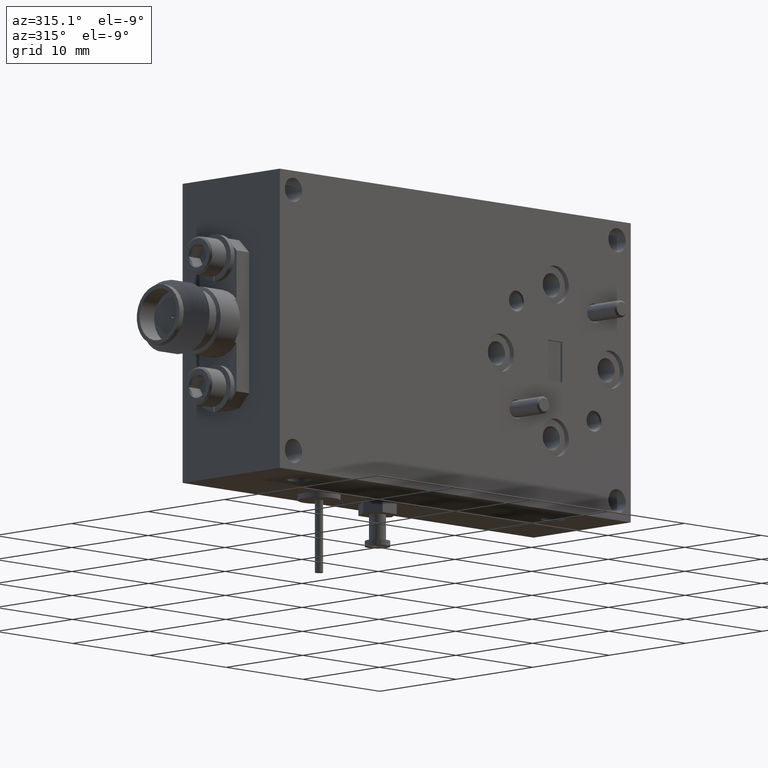
[diagram: clean part render]
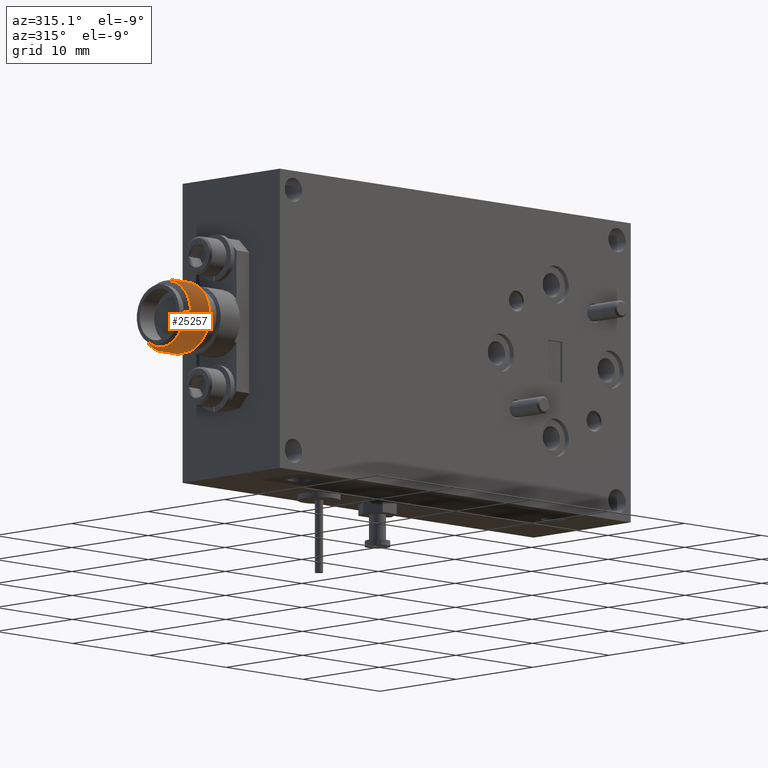
[diagram: same view with one face highlighted and labeled with its STEP entity id]
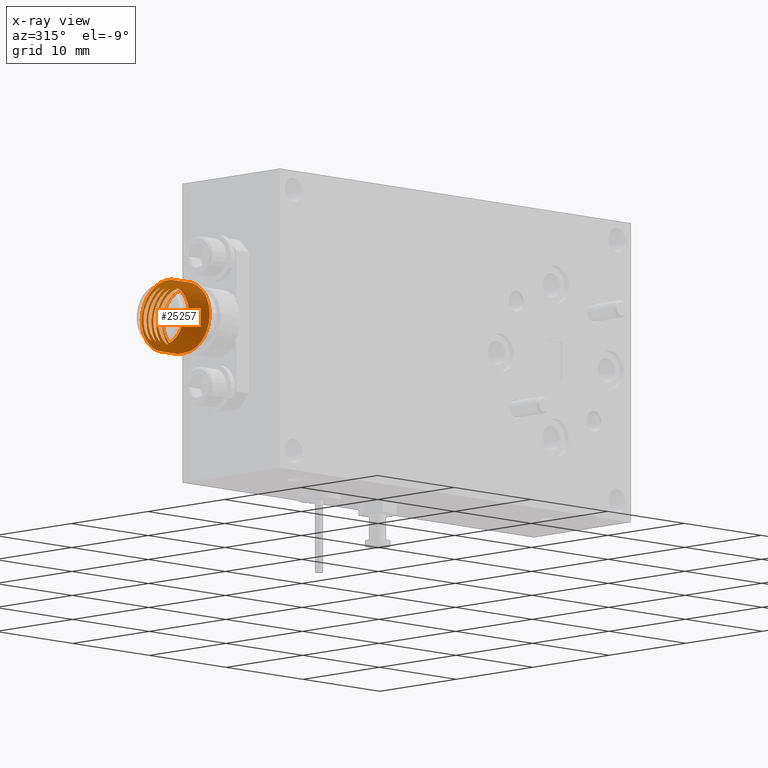
[diagram: x-ray of the same camera — body ghosted, the highlighted face saturated]
A machine part, auxiliary view. The second image highlights one B-rep face of the part: STEP entity #25257.
The next image is the same camera in x-ray: the body ghosted, the highlighted face saturated — about 0% of this face is hidden behind the body in this view.
In plain terms, the highlighted face is a freeform B-spline surface patch.
Its self-contained STEP definition (entity closure, byte-faithful):
#15 = CARTESIAN_POINT ( 'NONE',  ( -1.112916666666668100, 0.3608660254037858700, 0.06400852961085877500 ) ) ;
#45 = B_SPLINE_CURVE_WITH_KNOTS ( 'NONE', 3,
 ( #18218, #4761, #4666, #13888, #5362, #25769, #28161, #25875, #3047, #2752, #2647, #7644, #21134, #23367, #452, #28068, #7450, #9544, #16445, #18523, #9642, #12213, #16544, #9927, #23462, #658, #7242, #2954, #18837, #9835, #25584, #14392 ),
 .UNSPECIFIED., .F., .F.,
 ( 4, 2, 2, 2, 2, 2, 2, 2, 2, 2, 2, 2, 2, 2, 2, 4 ),
 ( 0.006863251075003450400, 0.007457865535476577300, 0.008052479995949704200, 0.008647094456422832800, 0.009241708916895963200, 0.01043093783784222000, 0.01102555229831534900, 0.01162016675878848100, 0.01221478121926161000, 0.01280939567973474000, 0.01340401014020787100, 0.01399862460068099900, 0.01459323906115413100, 0.01518785352162726200, 0.01578246798210038900, 0.01637708244257352100 ),
 .UNSPECIFIED. ) ;
#112 = CARTESIAN_POINT ( 'NONE',  ( -1.150416666666668000, 0.3825166604983966700, 0.07650852961085888300 ) ) ;
#211 = CARTESIAN_POINT ( 'NONE',  ( -1.117083333333334300, 0.1174833395016048200, 0.07650852961085905000 ) ) ;
#223 = CARTESIAN_POINT ( 'NONE',  ( -1.252500000000001500, 0.1391339745962154300, 2.075743025153384400E-016 ) ) ;
#253 = CARTESIAN_POINT ( 'NONE',  ( -1.140252130088777300, 0.1312434325007506800, -0.05229399979166787100 ) ) ;
#308 = ORIENTED_EDGE ( 'NONE', *, *, #16545, .F. ) ;
#315 = CARTESIAN_POINT ( 'NONE',  ( -1.148333333333334800, 0.3162583302491980800, 0.1147627944162882600 ) ) ;
#415 = CARTESIAN_POINT ( 'NONE',  ( -1.125416666666668100, 0.3825166604983966700, 0.07650852961085888300 ) ) ;
#426 = CARTESIAN_POINT ( 'NONE',  ( -1.233750000000001200, 0.2500000000000011100, 0.1280170592217179400 ) ) ;
#452 = CARTESIAN_POINT ( 'NONE',  ( -1.135002088879081500, 0.3698058939014254300, -0.01215586782048307600 ) ) ;
#499 = CARTESIAN_POINT ( 'NONE',  ( -1.185833333333334400, 0.1837416697508018900, -0.1147627944162879100 ) ) ;
#535 = CARTESIAN_POINT ( 'NONE',  ( -1.219166666666667600, 0.3054330127018924900, -0.09601279441628814100 ) ) ;
#604 = CARTESIAN_POINT ( 'NONE',  ( -1.192083333333334700, 0.1174833395016049700, 0.07650852961085952100 ) ) ;
#658 = CARTESIAN_POINT ( 'NONE',  ( -1.132768894320611800, 0.3103814647194778600, 0.09970208355234135000 ) ) ;
#694 = CARTESIAN_POINT ( 'NONE',  ( -1.194166666666667700, 0.1837416697508024400, 0.1147627944162886600 ) ) ;
#1180 = CARTESIAN_POINT ( 'NONE',  ( -1.143222565178984000, 0.1537154674341513800, 0.09742715842602803200 ) ) ;
#1237 = ORIENTED_EDGE ( 'NONE', *, *, #15510, .F. ) ;
#1351 = ORIENTED_EDGE ( 'NONE', *, *, #8382, .F. ) ;
#1428 = CARTESIAN_POINT ( 'NONE',  ( -1.237916666666667700, 0.3608660254037858700, 0.06400852961085877500 ) ) ;
#1519 = CARTESIAN_POINT ( 'NONE',  ( -1.185833333333334400, 0.3054330127018926600, 0.09601279441628835000 ) ) ;
#1627 = CARTESIAN_POINT ( 'NONE',  ( -1.225416666666667700, 0.1391339745962158200, -0.06400852961085846900 ) ) ;
#1716 = CARTESIAN_POINT ( 'NONE',  ( -1.208750000000001100, 0.2500000000000011100, 0.1280170592217180800 ) ) ;
#1817 = CARTESIAN_POINT ( 'NONE',  ( -1.269166666666667400, 0.3054330127018926600, -0.09601279441628814100 ) ) ;
#1917 = CARTESIAN_POINT ( 'NONE',  ( -1.240000000000000900, 0.1174833395016043900, 7.094605041801581100E-017 ) ) ;
#2021 = CARTESIAN_POINT ( 'NONE',  ( -1.258750000000000900, 0.2500000000000008900, -0.1530170592217177900 ) ) ;
#2114 = CARTESIAN_POINT ( 'NONE',  ( -1.206666666666667700, 0.3162583302491980800, -0.1147627944162880500 ) ) ;
#2205 = CARTESIAN_POINT ( 'NONE',  ( -1.200416666666668200, 0.3825166604983966700, 0.07650852961085888300 ) ) ;
#2311 = CARTESIAN_POINT ( 'NONE',  ( -1.233750000000001200, 0.2500000000000011100, -0.1530170592217177900 ) ) ;
#2412 = CARTESIAN_POINT ( 'NONE',  ( -1.173333333333334400, 0.3162583302491980800, 0.1147627944162883900 ) ) ;
#2420 = CARTESIAN_POINT ( 'NONE',  ( -1.210833333333334300, 0.3054330127018926600, 0.09601279441628835000 ) ) ;
#2443 = CARTESIAN_POINT ( 'NONE',  ( -1.140779175651867000, 0.1212331744775500800, -0.01990661995397657900 ) ) ;
#2478 = CARTESIAN_POINT ( 'NONE',  ( -1.130991431684599300, 0.2119435934893939600, 0.1070749455550856500 ) ) ;
#2509 = CARTESIAN_POINT ( 'NONE',  ( -1.131666666666668200, 0.3162583302491979700, -0.1147627944162881900 ) ) ;
#2520 = CARTESIAN_POINT ( 'NONE',  ( -1.208750000000001100, 0.2500000000000012800, 0.1280170592217180800 ) ) ;
#2545 = CARTESIAN_POINT ( 'NONE',  ( -1.137941243270268900, 0.2499999999994678700, -0.1252572142074412600 ) ) ;
#2619 = CARTESIAN_POINT ( 'NONE',  ( -1.242083333333334500, 0.3608660254037858700, -0.06400852961085878900 ) ) ;
#2647 = CARTESIAN_POINT ( 'NONE',  ( -1.135922154672041300, 0.3544151978033303600, -0.06455136246905288100 ) ) ;
#2728 = CARTESIAN_POINT ( 'NONE',  ( -1.237916666666667900, 0.3608660254037857100, 0.06400852961085877500 ) ) ;
#2752 = CARTESIAN_POINT ( 'NONE',  ( -1.136195593936455600, 0.3454570550508377400, -0.07792779841996917700 ) ) ;
#2795 = CARTESIAN_POINT ( 'NONE',  ( -1.179583333333334800, 0.3825166604983963900, -0.07650852961085921600 ) ) ;
#2820 = CARTESIAN_POINT ( 'NONE',  ( -1.123333333333334800, 0.3162583302491980800, 0.1147627944162883900 ) ) ;
#2831 = CARTESIAN_POINT ( 'NONE',  ( -1.240000000000000900, 0.3608660254037848700, 7.037404751612019600E-017 ) ) ;
#2902 = CARTESIAN_POINT ( 'NONE',  ( -1.177500000000001100, 0.3825166604983959400, -6.670291679577653200E-017 ) ) ;
#2954 = CARTESIAN_POINT ( 'NONE',  ( -1.132389483138386500, 0.2887438452850842300, 0.1092398089360993300 ) ) ;
#3047 = CARTESIAN_POINT ( 'NONE',  ( -1.136576897647566500, 0.3289236849974517800, -0.09452482295675361500 ) ) ;
#3089 = CARTESIAN_POINT ( 'NONE',  ( -1.219166666666667600, 0.1837416697508021700, 0.1147627944162885300 ) ) ;
#3163 = ORIENTED_EDGE ( 'NONE', *, *, #22689, .T. ) ;
#3254 = ORIENTED_EDGE ( 'NONE', *, *, #14919, .F. ) ;
#3500 = CARTESIAN_POINT ( 'NONE',  ( -1.158750000000001300, 0.2500000000000007800, -0.1530170592217177900 ) ) ;
#3604 = CARTESIAN_POINT ( 'NONE',  ( -1.152500000000001200, 0.3825166604983960500, -6.132459878762272800E-016 ) ) ;
#3606 = CARTESIAN_POINT ( 'NONE',  ( -1.144166666666668100, 0.3054330127018923800, -0.09601279441628828000 ) ) ;
#3693 = CARTESIAN_POINT ( 'NONE',  ( -1.135833333333334800, 0.3054330127018930500, 0.09601279441628807200 ) ) ;
#3759 = CARTESIAN_POINT ( 'NONE',  ( -1.198333333333334400, 0.1945669872981077600, -0.09601279441628787800 ) ) ;
#3852 = CARTESIAN_POINT ( 'NONE',  ( -1.242083333333334500, 0.3608660254037858700, -0.06400852961085878900 ) ) ;
#3947 = CARTESIAN_POINT ( 'NONE',  ( -1.265000000000000800, 0.3608660254037847600, 7.054751986371787900E-017 ) ) ;
#4041 = CARTESIAN_POINT ( 'NONE',  ( -1.190000000000001100, 0.3608660254037847600, 7.002710282092484200E-017 ) ) ;
#4150 = CARTESIAN_POINT ( 'NONE',  ( -1.256666666666668200, 0.1945669872981076200, 0.09601279441628835000 ) ) ;
#4247 = CARTESIAN_POINT ( 'NONE',  ( -1.227500000000000900, 0.3825166604983959400, 7.023642758263198200E-017 ) ) ;
#4342 = CARTESIAN_POINT ( 'NONE',  ( -1.260833333333334100, 0.1837416697508020300, -0.1147627944162880500 ) ) ;
#4431 = CARTESIAN_POINT ( 'NONE',  ( -1.196250000000001100, 0.2500000000000012800, 0.1530170592217179900 ) ) ;
#4466 = B_SPLINE_CURVE_WITH_KNOTS ( 'NONE', 1,
 ( #21984, #24294 ),
 .UNSPECIFIED., .F., .F.,
 ( 2, 2 ),
 ( 0.0000000000000000000, 0.0006350000000000044800 ),
 .UNSPECIFIED. ) ;
#4470 = CARTESIAN_POINT ( 'NONE',  ( -1.138130537076010200, 0.2385963754304260300, -0.1251940583174626400 ) ) ;
#4532 = CARTESIAN_POINT ( 'NONE',  ( -1.150416666666667800, 0.1391339745962158200, -0.06400852961085863600 ) ) ;
#4569 = CARTESIAN_POINT ( 'NONE',  ( -1.138407381691997100, 0.2218001678372572300, -0.1229990265040934900 ) ) ;
#4631 = CARTESIAN_POINT ( 'NONE',  ( -1.098333333333334900, 0.3162583302491980800, 0.1147627944162882600 ) ) ;
#4666 = CARTESIAN_POINT ( 'NONE',  ( -1.137681094375931000, 0.2655985490232554100, -0.1240754303303973800 ) ) ;
#4738 = CARTESIAN_POINT ( 'NONE',  ( -1.202500000000001000, 0.1391339745962154300, 7.063495813692992700E-017 ) ) ;
#4761 = CARTESIAN_POINT ( 'NONE',  ( -1.137810704531598800, 0.2578484410004219800, -0.1250311144797420800 ) ) ;
#4822 = CARTESIAN_POINT ( 'NONE',  ( -1.094166666666668300, 0.1837416697508025800, 0.1147627944162885300 ) ) ;
#4833 = CARTESIAN_POINT ( 'NONE',  ( -1.173333333333334400, 0.1945669872981077600, -0.09601279441628787800 ) ) ;
#4860 = CARTESIAN_POINT ( 'NONE',  ( -1.141429720314503600, 0.1210007015485644300, 0.02511678319498511800 ) ) ;
#4931 = CARTESIAN_POINT ( 'NONE',  ( -1.187916666666668100, 0.1174833395016048200, -0.07650852961085843900 ) ) ;
#5026 = CARTESIAN_POINT ( 'NONE',  ( -1.096250000000001100, 0.2500000000000011100, 0.1530170592217178800 ) ) ;
#5037 = CARTESIAN_POINT ( 'NONE',  ( -1.223333333333334300, 0.1945669872981077600, -0.09601279441628814100 ) ) ;
#5110 = CARTESIAN_POINT ( 'NONE',  ( -1.173333333333334400, 0.3162583302491982500, 0.1147627944162882600 ) ) ;
#5144 = CARTESIAN_POINT ( 'NONE',  ( -1.212916666666668000, 0.3608660254037857100, 0.06400852961085892700 ) ) ;
#5314 = CARTESIAN_POINT ( 'NONE',  ( -1.187916666666667400, 0.1174833395016046700, -0.07650852961085827200 ) ) ;
#5362 = CARTESIAN_POINT ( 'NONE',  ( -1.137295279989450200, 0.2885030618712054500, -0.1182752900178873800 ) ) ;
#5411 = CARTESIAN_POINT ( 'NONE',  ( -1.208750000000001100, 0.2500000000000007800, -0.1530170592217174900 ) ) ;
#5502 = CARTESIAN_POINT ( 'NONE',  ( -1.171250000000001200, 0.2500000000000015500, 0.1530170592217178800 ) ) ;
#5602 = CARTESIAN_POINT ( 'NONE',  ( -1.156666666666667800, 0.1945669872981079000, 0.09601279441628862700 ) ) ;
#5700 = CARTESIAN_POINT ( 'NONE',  ( -1.146250000000001300, 0.2500000000000015500, 0.1530170592217178800 ) ) ;
#5795 = CARTESIAN_POINT ( 'NONE',  ( -1.130722565178984300, 0.1694464802139623900, 0.08150946288907719200 ) ) ;
#5889 = CARTESIAN_POINT ( 'NONE',  ( -1.162916666666667900, 0.1174833395016046700, -0.07650852961085843900 ) ) ;
#5946 = CARTESIAN_POINT ( 'NONE',  ( -1.254583333333334300, 0.1391339745962160700, 0.06400852961085908000 ) ) ;
#5990 = CARTESIAN_POINT ( 'NONE',  ( -1.148333333333334800, 0.1945669872981074800, -0.09601279441628801600 ) ) ;
#6041 = CARTESIAN_POINT ( 'NONE',  ( -1.258750000000001100, 0.2500000000000012800, 0.1280170592217177700 ) ) ;
#6141 = CARTESIAN_POINT ( 'NONE',  ( -1.179583333333334800, 0.1391339745962158200, 0.06400852961085908000 ) ) ;
#6247 = CARTESIAN_POINT ( 'NONE',  ( -1.165000000000001100, 0.3608660254037847600, -6.673876920988600200E-017 ) ) ;
#6261 = VERTEX_POINT ( 'NONE', #23567 ) ;
#6343 = CARTESIAN_POINT ( 'NONE',  ( -1.175416666666667900, 0.1391339745962158200, -0.06400852961085863600 ) ) ;
#6426 = CARTESIAN_POINT ( 'NONE',  ( -1.110833333333334900, 0.3054330127018930500, 0.09601279441628835000 ) ) ;
#6514 = CARTESIAN_POINT ( 'NONE',  ( -1.215000000000001000, 0.1174833395016045300, 2.073649777536312800E-016 ) ) ;
#6608 = CARTESIAN_POINT ( 'NONE',  ( -1.223333333333334300, 0.3162583302491980800, 0.1147627944162883900 ) ) ;
#6705 = CARTESIAN_POINT ( 'NONE',  ( -1.231666666666667800, 0.3162583302491980800, -0.1147627944162881900 ) ) ;
#6744 = CARTESIAN_POINT ( 'NONE',  ( -1.141516321534613600, 0.1220731514953332800, 0.03075021493933468800 ) ) ;
#6766 = VERTEX_POINT ( 'NONE', #25001 ) ;
#6800 = CARTESIAN_POINT ( 'NONE',  ( -1.256666666666667500, 0.3162583302491980800, -0.1147627944162880500 ) ) ;
#6903 = CARTESIAN_POINT ( 'NONE',  ( -1.152500000000001200, 0.3825166604983960500, 6.971601053983846500E-017 ) ) ;
#6942 = CARTESIAN_POINT ( 'NONE',  ( -1.141023906273422900, 0.1193172209278344400, -0.003020650655131549900 ) ) ;
#7007 = CARTESIAN_POINT ( 'NONE',  ( -1.165000000000001100, 0.1174833395016042500, 7.042563337522277400E-017 ) ) ;
#7107 = CARTESIAN_POINT ( 'NONE',  ( -1.140000000000001500, 0.1174833395016045300, 7.025216102762510300E-017 ) ) ;
#7115 = CARTESIAN_POINT ( 'NONE',  ( -1.187916666666668100, 0.3608660254037857100, 0.06400852961085877500 ) ) ;
#7142 = CARTESIAN_POINT ( 'NONE',  ( -1.138316202634840800, 0.2273464212998997900, -0.1239809885701359700 ) ) ;
#7178 = CARTESIAN_POINT ( 'NONE',  ( -1.131336839499312000, 0.2306131802339717600, 0.1125758135693911300 ) ) ;
#7208 = CARTESIAN_POINT ( 'NONE',  ( -1.108750000000001000, 0.2500000000000011100, -0.1530170592217176300 ) ) ;
#7218 = CARTESIAN_POINT ( 'NONE',  ( -1.246250000000001000, 0.2500000000000012800, -0.1280170592217174900 ) ) ;
#7242 = CARTESIAN_POINT ( 'NONE',  ( -1.132648319615139600, 0.3033172485948736300, 0.1034194445766461500 ) ) ;
#7286 = CARTESIAN_POINT ( 'NONE',  ( -1.233750000000001200, 0.2500000000000009400, -0.1530170592217176800 ) ) ;
#7425 = CARTESIAN_POINT ( 'NONE',  ( -1.248333333333334200, 0.1945669872981077600, -0.09601279441628828000 ) ) ;
#7450 = CARTESIAN_POINT ( 'NONE',  ( -1.134640957636843700, 0.3692475510204531500, 0.01146006435328551600 ) ) ;
#7586 = CARTESIAN_POINT ( 'NONE',  ( -1.223333333333334300, 0.3162583302491982500, 0.1147627944162882600 ) ) ;
#7644 = CARTESIAN_POINT ( 'NONE',  ( -1.135521712671877300, 0.3634670239669259800, -0.04293365548546616800 ) ) ;
#7688 = CARTESIAN_POINT ( 'NONE',  ( -1.212916666666667800, 0.1174833395016048200, -0.07650852961085843900 ) ) ;
#7865 = CARTESIAN_POINT ( 'NONE',  ( -1.156666666666667800, 0.3162583302491975300, -0.1147627944162883200 ) ) ;
#7965 = CARTESIAN_POINT ( 'NONE',  ( -1.142083333333334700, 0.3608660254037858700, -0.06400852961085878900 ) ) ;
#8156 = CARTESIAN_POINT ( 'NONE',  ( -1.146250000000001100, 0.2500000000000006700, -0.1280170592217176600 ) ) ;
#8210 = CARTESIAN_POINT ( 'NONE',  ( -1.215000000000001000, 0.3608660254037847600, 7.020057516852251300E-017 ) ) ;
#8309 = CARTESIAN_POINT ( 'NONE',  ( -1.200416666666667800, 0.1391339745962159900, -0.06400852961085846900 ) ) ;
#8382 = EDGE_CURVE ( 'NONE', #18323, #26219, #11703, .T. ) ;
#8401 = CARTESIAN_POINT ( 'NONE',  ( -1.169166666666667800, 0.3054330127018926600, -0.09601279441628814100 ) ) ;
#8593 = CARTESIAN_POINT ( 'NONE',  ( -1.202500000000001000, 0.1391339745962154300, 7.063495813692992700E-017 ) ) ;
#8701 = CARTESIAN_POINT ( 'NONE',  ( -1.140000000000001500, 0.3608660254037847600, 6.968015812572365800E-017 ) ) ;
#8800 = CARTESIAN_POINT ( 'NONE',  ( -1.156666666666667800, 0.1945669872981077600, 0.09601279441628848800 ) ) ;
#8835 = B_SPLINE_CURVE_WITH_KNOTS ( 'NONE', 3,
 ( #22452, #24467, #25059, #6744, #4860, #11300, #18322, #6942, #23054, #2443, #20338, #15752, #253, #27451, #25167, #13589, #22850, #29540, #25269, #11393, #20627, #4569, #7142, #4470, #9338, #2545 ),
 .UNSPECIFIED., .F., .F.,
 ( 4, 2, 2, 2, 2, 2, 2, 2, 2, 2, 2, 2, 4 ),
 ( 1.659927335255204000E-017, 0.0008579063843754443100, 0.001286859576563158100, 0.001715812768750871700, 0.002144765960938585500, 0.002573719153126299300, 0.003431625537501727400, 0.004289531921877155400, 0.004718485114064871000, 0.005147438306252586500, 0.006005344690628017600, 0.006434297882815734000, 0.006863251075003450400 ),
 .UNSPECIFIED. ) ;
#8902 = CARTESIAN_POINT ( 'NONE',  ( -1.204583333333334900, 0.3825166604983966700, -0.07650852961085889700 ) ) ;
#8997 = CARTESIAN_POINT ( 'NONE',  ( -1.250416666666667800, 0.3825166604983968900, 0.07650852961085871700 ) ) ;
#9061 = CARTESIAN_POINT ( 'NONE',  ( -1.252500000000001500, 0.1391339745962154300, 2.075743025153384400E-016 ) ) ;
#9098 = CARTESIAN_POINT ( 'NONE',  ( -1.135833333333334800, 0.3054330127018926600, 0.09601279441628835000 ) ) ;
#9198 = CARTESIAN_POINT ( 'NONE',  ( -1.100416666666667700, 0.3825166604983965500, 0.07650852961085888300 ) ) ;
#9303 = CARTESIAN_POINT ( 'NONE',  ( -1.169166666666667800, 0.1837416697508021700, 0.1147627944162885300 ) ) ;
#9313 = CARTESIAN_POINT ( 'NONE',  ( -1.198333333333334400, 0.1945669872981077600, -0.09601279441628801600 ) ) ;
#9338 = CARTESIAN_POINT ( 'NONE',  ( -1.138035413547614500, 0.2443381568307406700, -0.1254203219123436700 ) ) ;
#9414 = CARTESIAN_POINT ( 'NONE',  ( -1.185833333333334400, 0.3054330127018926600, 0.09601279441628821100 ) ) ;
#9507 = CARTESIAN_POINT ( 'NONE',  ( -1.102500000000001600, 0.3825166604983959400, 6.936906584464359100E-017 ) ) ;
#9518 = CARTESIAN_POINT ( 'NONE',  ( -1.190000000000001100, 0.3608660254037847600, 7.002710282092484200E-017 ) ) ;
#9544 = CARTESIAN_POINT ( 'NONE',  ( -1.134385368117575100, 0.3662979250268326700, 0.02684138557572535500 ) ) ;
#9588 = CARTESIAN_POINT ( 'NONE',  ( -1.206666666666667700, 0.3162583302491979700, -0.1147627944162880500 ) ) ;
#9620 = CARTESIAN_POINT ( 'NONE',  ( -1.229583333333334400, 0.1391339745962158500, 0.06400852961085908000 ) ) ;
#9642 = CARTESIAN_POINT ( 'NONE',  ( -1.133841386922157500, 0.3543840754559862700, 0.05590911240565473600 ) ) ;
#9835 = CARTESIAN_POINT ( 'NONE',  ( -1.131977396522356700, 0.2657696450878215800, 0.1141107082201216500 ) ) ;
#9876 = CARTESIAN_POINT ( 'NONE',  ( -1.215000000000001000, 0.1174833395016045300, 2.073649777536312800E-016 ) ) ;
#9927 = CARTESIAN_POINT ( 'NONE',  ( -1.133154026298697200, 0.3295075033588869000, 0.08615119897512713000 ) ) ;
#9969 = CARTESIAN_POINT ( 'NONE',  ( -1.240000000000000900, 0.1174833395016043900, 7.094605041801581100E-017 ) ) ;
#10065 = CARTESIAN_POINT ( 'NONE',  ( -1.150416666666668000, 0.3825166604983966700, 0.07650852961085871700 ) ) ;
#10169 = CARTESIAN_POINT ( 'NONE',  ( -1.133750000000001600, 0.2500000000000014400, 0.1280170592217179400 ) ) ;
#10600 = CARTESIAN_POINT ( 'NONE',  ( -1.235833333333334200, 0.3054330127018927700, 0.09601279441628835000 ) ) ;
#10692 = CARTESIAN_POINT ( 'NONE',  ( -1.217083333333334600, 0.3608660254037858700, -0.06400852961085894100 ) ) ;
#10786 = CARTESIAN_POINT ( 'NONE',  ( -1.277500000000001400, 0.1391339745962152900, 7.115537517972296400E-017 ) ) ;
#10881 = CARTESIAN_POINT ( 'NONE',  ( -1.221250000000001300, 0.2500000000000012800, -0.1280170592217174900 ) ) ;
#10971 = CARTESIAN_POINT ( 'NONE',  ( -1.127500000000001500, 0.1391339745962154300, 7.011454109413689000E-017 ) ) ;
#11057 = CARTESIAN_POINT ( 'NONE',  ( -1.208750000000001500, 0.2500000000000011100, -0.1530170592217176300 ) ) ;
#11160 = CARTESIAN_POINT ( 'NONE',  ( -1.123333333333334800, 0.1945669872981081700, -0.09601279441628801600 ) ) ;
#11259 = CARTESIAN_POINT ( 'NONE',  ( -1.192083333333334700, 0.1174833395016046700, 0.07650852961085905000 ) ) ;
#11300 = CARTESIAN_POINT ( 'NONE',  ( -1.141262118036959800, 0.1196031109607150600, 0.01386275902941228600 ) ) ;
#11361 = CARTESIAN_POINT ( 'NONE',  ( -1.148333333333334800, 0.1945669872981077600, -0.09601279441628814100 ) ) ;
#11393 = CARTESIAN_POINT ( 'NONE',  ( -1.138848219047073200, 0.1946557617826114300, -0.1146703653398034600 ) ) ;
#11461 = CARTESIAN_POINT ( 'NONE',  ( -1.115000000000000900, 0.1174833395016045300, 7.007868868002742000E-017 ) ) ;
#11570 = CARTESIAN_POINT ( 'NONE',  ( -1.144166666666668100, 0.1837416697508021700, 0.1147627944162883900 ) ) ;
#11580 = CARTESIAN_POINT ( 'NONE',  ( -1.194166666666667700, 0.3054330127018923800, -0.09601279441628828000 ) ) ;
#11590 =( BOUNDED_CURVE ( )  B_SPLINE_CURVE ( 2, ( #223, #25664, #7425, #7218, #16422, #2619, #2831, #2728, #11886, #426, #16022, #9620, #16321, #22936, #5037, #25555, #535, #11683, #18711, #5144, #2420, #2520, #18297, #13969, #4738, #20607, #9313, #25242, #11580, #18400, #9518, #7115, #9414, #27537, #16123, #13861, #14077, #27741, #4833, #20707, #23032, #16222, #25450, #11780, #21576, #21766, #5602, #12539, #26197, #19563, #5990, #8156, #3606, #7965, #23899, #21473, #3693, #10169, #17164, #5795, #21869 ),
 .UNSPECIFIED., .F., .F. ) 
 B_SPLINE_CURVE_WITH_KNOTS ( ( 3, 2, 2, 2, 2, 2, 2, 2, 2, 2, 2, 2, 2, 2, 2, 2, 2, 2, 2, 2, 2, 2, 2, 2, 2, 2, 2, 2, 2, 2, 3 ),
 ( 0.1428571428571428500, 0.1666666666666666600, 0.1904761904761904700, 0.2142857142857142700, 0.2380952380952380800, 0.2619047619047619200, 0.2857142857142857000, 0.3095238095238095300, 0.3333333333333333100, 0.3571428571428571500, 0.3809523809523809300, 0.4047619047619047700, 0.4285714285714285500, 0.4523809523809523800, 0.4761904761904761600, 0.5000000000000000000, 0.5238095238095237200, 0.5476190476190476700, 0.5714285714285714000, 0.5952380952380951200, 0.6190476190476190700, 0.6428571428571427900, 0.6666666666666665200, 0.6904761904761904700, 0.7142857142857141900, 0.7380952380952381400, 0.7619047619047618600, 0.7857142857142855900, 0.8095238095238095300, 0.8333333333333332600, 0.8449760257393235100 ),
 .UNSPECIFIED. ) 
 CURVE ( )  GEOMETRIC_REPRESENTATION_ITEM ( )  RATIONAL_B_SPLINE_CURVE ( ( 1.000000000000000000, 0.8660254037844387100, 1.000000000000000000, 0.8660254037844387100, 1.000000000000000000, 0.8660254037844387100, 1.000000000000000000, 0.8660254037844387100, 1.000000000000000000, 0.8660254037844387100, 1.000000000000000000, 0.8660254037844387100, 1.000000000000000000, 0.8660254037844387100, 1.000000000000000000, 0.8660254037844387100, 1.000000000000000000, 0.8660254037844387100, 1.000000000000000000, 0.8660254037844387100, 1.000000000000000000, 0.8660254037844387100, 1.000000000000000000, 0.8660254037844387100, 1.000000000000000000, 0.8660254037844387100, 1.000000000000000000, 0.8660254037844387100, 1.000000000000000000, 0.8660254037844387100, 1.000000000000000000, 0.8660254037844387100, 1.000000000000000000, 0.8660254037844387100, 1.000000000000000000, 0.8660254037844387100, 1.000000000000000000, 0.8660254037844387100, 1.000000000000000000, 0.8660254037844387100, 1.000000000000000000, 0.8660254037844387100, 1.000000000000000000, 0.8660254037844387100, 1.000000000000000000, 0.8660254037844387100, 1.000000000000000000, 0.8660254037844387100, 1.000000000000000000, 0.8660254037844387100, 1.000000000000000000, 0.8660254037844387100, 1.000000000000000000, 0.8660254037844387100, 1.000000000000000000, 0.8660254037844387100, 1.000000000000000000, 0.8660254037844387100, 1.000000000000000000, 0.9344873494139096500, 0.9330451645437166700 ) ) 
 REPRESENTATION_ITEM ( '' )  );
#11671 = CARTESIAN_POINT ( 'NONE',  ( -1.160833333333334500, 0.1837416697508018900, -0.1147627944162880500 ) ) ;
#11683 = CARTESIAN_POINT ( 'NONE',  ( -1.217083333333334600, 0.3608660254037858700, -0.06400852961085895500 ) ) ;
#11703 = B_SPLINE_CURVE_WITH_KNOTS ( 'NONE', 3,
 ( #27800, #13820, #7178, #2478, #18455, #11843, #27495, #16282, #23186, #23094 ),
 .UNSPECIFIED., .F., .F.,
 ( 4, 2, 2, 2, 4 ),
 ( 0.01637708244257352100, 0.01711292257333242600, 0.01784876270409133100, 0.01858460283485023600, 0.01932044296560914100 ),
 .UNSPECIFIED. ) ;
#11770 = CARTESIAN_POINT ( 'NONE',  ( -1.171250000000001200, 0.2500000000000011100, 0.1530170592217179900 ) ) ;
#11780 = CARTESIAN_POINT ( 'NONE',  ( -1.162916666666668200, 0.3608660254037858700, 0.06400852961085877500 ) ) ;
#11843 = CARTESIAN_POINT ( 'NONE',  ( -1.130511494397481000, 0.1863361119708833700, 0.09313137263990846300 ) ) ;
#11851 = CARTESIAN_POINT ( 'NONE',  ( -1.229583333333334400, 0.3825166604983965500, -0.07650852961085906300 ) ) ;
#11875 = CARTESIAN_POINT ( 'NONE',  ( -1.104583333333334400, 0.3825166604983965500, -0.07650852961085889700 ) ) ;
#11886 = CARTESIAN_POINT ( 'NONE',  ( -1.235833333333334200, 0.3054330127018927700, 0.09601279441628835000 ) ) ;
#11961 = CARTESIAN_POINT ( 'NONE',  ( -1.227500000000000900, 0.3825166604983959400, 7.023642758263198200E-017 ) ) ;
#12213 = CARTESIAN_POINT ( 'NONE',  ( -1.133565543954521600, 0.3457105285942964100, 0.06891069041169357900 ) ) ;
#12445 = CARTESIAN_POINT ( 'NONE',  ( -1.169166666666667800, 0.1837416697508024400, 0.1147627944162885300 ) ) ;
#12539 = CARTESIAN_POINT ( 'NONE',  ( -1.154583333333334600, 0.1391339745962159900, 0.06400852961085924700 ) ) ;
#12683 =( BOUNDED_CURVE ( )  B_SPLINE_CURVE ( 2, ( #9969, #21075, #16681, #7286, #25724, #11851, #11961, #23195, #7586, #23502, #3089, #14336, #9876, #7688, #28199, #5411, #9588, #25630, #25517, #27806, #28014, #14149, #694, #604, #23307, #5314, #499, #16388, #16483, #2795, #2902, #18679, #5110, #5502, #12445, #26091, #19464, #5889, #21667, #3500, #7865, #21368, #3604, #10065, #17066, #5700, #21764, #1180, #19074 ),
 .UNSPECIFIED., .F., .F. ) 
 B_SPLINE_CURVE_WITH_KNOTS ( ( 3, 2, 2, 2, 2, 2, 2, 2, 2, 2, 2, 2, 2, 2, 2, 2, 2, 2, 2, 2, 2, 2, 2, 2, 3 ),
 ( 0.1428571428571428500, 0.1666666666666666600, 0.1904761904761904700, 0.2142857142857142700, 0.2380952380952380800, 0.2619047619047619200, 0.2857142857142857000, 0.3095238095238095300, 0.3333333333333333100, 0.3571428571428571500, 0.3809523809523809300, 0.4047619047619047700, 0.4285714285714285500, 0.4523809523809523800, 0.4761904761904761600, 0.5000000000000000000, 0.5238095238095238400, 0.5476190476190476700, 0.5714285714285714000, 0.5952380952380952300, 0.6190476190476190700, 0.6428571428571427900, 0.6666666666666665200, 0.6904761904761904700, 0.7021188828821798300 ),
 .UNSPECIFIED. ) 
 CURVE ( )  GEOMETRIC_REPRESENTATION_ITEM ( )  RATIONAL_B_SPLINE_CURVE ( ( 1.000000000000000000, 0.8660254037844387100, 1.000000000000000000, 0.8660254037844387100, 1.000000000000000000, 0.8660254037844387100, 1.000000000000000000, 0.8660254037844387100, 1.000000000000000000, 0.8660254037844387100, 1.000000000000000000, 0.8660254037844387100, 1.000000000000000000, 0.8660254037844387100, 1.000000000000000000, 0.8660254037844387100, 1.000000000000000000, 0.8660254037844387100, 1.000000000000000000, 0.8660254037844387100, 1.000000000000000000, 0.8660254037844387100, 1.000000000000000000, 0.8660254037844387100, 1.000000000000000000, 0.8660254037844387100, 1.000000000000000000, 0.8660254037844387100, 1.000000000000000000, 0.8660254037844387100, 1.000000000000000000, 0.8660254037844387100, 1.000000000000000000, 0.8660254037844387100, 1.000000000000000000, 0.8660254037844387100, 1.000000000000000000, 0.8660254037844387100, 1.000000000000000000, 0.8660254037844387100, 1.000000000000000000, 0.8660254037844387100, 1.000000000000000000, 0.8660254037844387100, 1.000000000000000000, 0.8660254037844387100, 1.000000000000000000, 0.9344873494139149800, 0.9330451645437170000 ) ) 
 REPRESENTATION_ITEM ( '' )  );
#12792 = CARTESIAN_POINT ( 'NONE',  ( -1.260833333333334100, 0.3054330127018926600, 0.09601279441628835000 ) ) ;
#12859 = ORIENTED_EDGE ( 'NONE', *, *, #15002, .F. ) ;
#12887 = CARTESIAN_POINT ( 'NONE',  ( -1.212916666666668000, 0.3608660254037856500, 0.06400852961085892700 ) ) ;
#12988 = CARTESIAN_POINT ( 'NONE',  ( -1.267083333333334700, 0.3608660254037858700, -0.06400852961085878900 ) ) ;
#13082 = CARTESIAN_POINT ( 'NONE',  ( -1.171250000000001700, 0.2500000000000012800, -0.1280170592217174900 ) ) ;
#13169 = CARTESIAN_POINT ( 'NONE',  ( -1.210833333333334300, 0.3054330127018926600, 0.09601279441628835000 ) ) ;
#13266 = CARTESIAN_POINT ( 'NONE',  ( -1.244166666666667500, 0.1837416697508021700, 0.1147627944162883900 ) ) ;
#13365 = CARTESIAN_POINT ( 'NONE',  ( -1.248333333333334200, 0.3162583302491980800, 0.1147627944162881200 ) ) ;
#13462 = CARTESIAN_POINT ( 'NONE',  ( -1.106666666666667600, 0.1945669872981080400, 0.09601279441628848800 ) ) ;
#13555 = CARTESIAN_POINT ( 'NONE',  ( -1.265000000000001500, 0.1174833395016043900, 7.111952276561349500E-017 ) ) ;
#13589 = CARTESIAN_POINT ( 'NONE',  ( -1.139434276553228800, 0.1618254306443765700, -0.09274272388766056900 ) ) ;
#13648 = CARTESIAN_POINT ( 'NONE',  ( -1.121250000000001200, 0.2500000000000012800, -0.1280170592217176600 ) ) ;
#13748 = CARTESIAN_POINT ( 'NONE',  ( -1.183750000000001600, 0.2500000000000011100, -0.1530170592217176300 ) ) ;
#13820 = CARTESIAN_POINT ( 'NONE',  ( -1.131515195630033800, 0.2403301766206416600, 0.1141269732027486600 ) ) ;
#13851 = CARTESIAN_POINT ( 'NONE',  ( -1.119166666666668200, 0.1837416697508025800, 0.1147627944162883900 ) ) ;
#13861 = CARTESIAN_POINT ( 'NONE',  ( -1.179583333333334300, 0.1391339745962158500, 0.06400852961085924700 ) ) ;
#13888 = CARTESIAN_POINT ( 'NONE',  ( -1.137423770768679600, 0.2809033750555861000, -0.1207143536808243400 ) ) ;
#13955 = CARTESIAN_POINT ( 'NONE',  ( -1.177500000000001100, 0.3825166604983957800, 2.064818825706497800E-016 ) ) ;
#13969 = CARTESIAN_POINT ( 'NONE',  ( -1.204583333333334400, 0.1391339745962158500, 0.06400852961085939900 ) ) ;
#14067 = CARTESIAN_POINT ( 'NONE',  ( -1.135833333333334800, 0.1837416697508020300, -0.1147627944162880500 ) ) ;
#14077 = CARTESIAN_POINT ( 'NONE',  ( -1.177500000000001100, 0.1391339745962152900, 2.070538854725454000E-016 ) ) ;
#14149 = CARTESIAN_POINT ( 'NONE',  ( -1.196250000000001100, 0.2500000000000017200, 0.1530170592217178800 ) ) ;
#14336 = CARTESIAN_POINT ( 'NONE',  ( -1.217083333333334200, 0.1174833395016049700, 0.07650852961085920200 ) ) ;
#14392 = CARTESIAN_POINT ( 'NONE',  ( -1.131691243270271300, 0.2500000000006248900, 0.1144318966601407400 ) ) ;
#14919 = EDGE_CURVE ( 'NONE', #6261, #6766, #8835, .T. ) ;
#15002 = EDGE_CURVE ( 'NONE', #6766, #18323, #45, .T. ) ;
#15075 = CARTESIAN_POINT ( 'NONE',  ( -1.204583333333334400, 0.1391339745962156800, 0.06400852961085908000 ) ) ;
#15161 = CARTESIAN_POINT ( 'NONE',  ( -1.192083333333334900, 0.3608660254037859800, -0.06400852961085878900 ) ) ;
#15250 = CARTESIAN_POINT ( 'NONE',  ( -1.227500000000000900, 0.1391339745962154300, 7.080843048452761000E-017 ) ) ;
#15341 = CARTESIAN_POINT ( 'NONE',  ( -1.233750000000001200, 0.2500000000000011100, 0.1280170592217177700 ) ) ;
#15510 = EDGE_CURVE ( 'NONE', #27370, #28975, #4466, .T. ) ;
#15533 = CARTESIAN_POINT ( 'NONE',  ( -1.125416666666667800, 0.1391339745962159900, -0.06400852961085863600 ) ) ;
#15615 = CARTESIAN_POINT ( 'NONE',  ( -1.158750000000001300, 0.2500000000000011100, 0.1280170592217179400 ) ) ;
#15713 = CARTESIAN_POINT ( 'NONE',  ( -1.217083333333334400, 0.1174833395016048200, 0.07650852961085920200 ) ) ;
#15752 = CARTESIAN_POINT ( 'NONE',  ( -1.140432302463701500, 0.1268534782860383500, -0.04184643459298797300 ) ) ;
#15817 = CARTESIAN_POINT ( 'NONE',  ( -1.212916666666667800, 0.1174833395016048200, -0.07650852961085843900 ) ) ;
#15913 = CARTESIAN_POINT ( 'NONE',  ( -1.242083333333334300, 0.1174833395016049900, 0.07650852961085905000 ) ) ;
#16011 = CARTESIAN_POINT ( 'NONE',  ( -1.110833333333334200, 0.1837416697508024400, -0.1147627944162880500 ) ) ;
#16022 = CARTESIAN_POINT ( 'NONE',  ( -1.231666666666667800, 0.1945669872981076200, 0.09601279441628835000 ) ) ;
#16111 = CARTESIAN_POINT ( 'NONE',  ( -1.179583333333334800, 0.3825166604983965500, -0.07650852961085889700 ) ) ;
#16123 = CARTESIAN_POINT ( 'NONE',  ( -1.181666666666667800, 0.1945669872981077600, 0.09601279441628848800 ) ) ;
#16211 = CARTESIAN_POINT ( 'NONE',  ( -1.106666666666668200, 0.3162583302491979700, -0.1147627944162880500 ) ) ;
#16222 = CARTESIAN_POINT ( 'NONE',  ( -1.167083333333334600, 0.3608660254037854800, -0.06400852961085910800 ) ) ;
#16282 = CARTESIAN_POINT ( 'NONE',  ( -1.129999783940578200, 0.1652605752494640300, 0.07311354594898941700 ) ) ;
#16321 = CARTESIAN_POINT ( 'NONE',  ( -1.227500000000000900, 0.1391339745962152900, 7.080843048452761000E-017 ) ) ;
#16388 = CARTESIAN_POINT ( 'NONE',  ( -1.183750000000001000, 0.2500000000000006700, -0.1530170592217176800 ) ) ;
#16422 = CARTESIAN_POINT ( 'NONE',  ( -1.244166666666667500, 0.3054330127018926600, -0.09601279441628814100 ) ) ;
#16445 = CARTESIAN_POINT ( 'NONE',  ( -1.134253477768387500, 0.3640764629710796000, 0.03432779135702099900 ) ) ;
#16483 = CARTESIAN_POINT ( 'NONE',  ( -1.181666666666667800, 0.3162583302491978100, -0.1147627944162881900 ) ) ;
#16544 = CARTESIAN_POINT ( 'NONE',  ( -1.133427488492215500, 0.3407246178149337400, 0.07499027782087648600 ) ) ;
#16545 = EDGE_CURVE ( 'NONE', #28975, #6261, #12683, .T. ) ;
#16681 = CARTESIAN_POINT ( 'NONE',  ( -1.235833333333334200, 0.1837416697508021700, -0.1147627944162881900 ) ) ;
#17066 = CARTESIAN_POINT ( 'NONE',  ( -1.148333333333334800, 0.3162583302491983600, 0.1147627944162882600 ) ) ;
#17164 = CARTESIAN_POINT ( 'NONE',  ( -1.131666666666668200, 0.1945669872981085600, 0.09601279441628876600 ) ) ;
#17311 = CARTESIAN_POINT ( 'NONE',  ( -1.240000000000000900, 0.3608660254037847600, 7.037404751612019600E-017 ) ) ;
#17607 = CARTESIAN_POINT ( 'NONE',  ( -1.229583333333334400, 0.1391339745962158200, 0.06400852961085908000 ) ) ;
#17796 = CARTESIAN_POINT ( 'NONE',  ( -1.229583333333334400, 0.3825166604983965500, -0.07650852961085889700 ) ) ;
#17893 = CARTESIAN_POINT ( 'NONE',  ( -1.144166666666668100, 0.3054330127018926600, -0.09601279441628814100 ) ) ;
#17987 = CARTESIAN_POINT ( 'NONE',  ( -1.202500000000001000, 0.3825166604983959400, 7.006295523503431200E-017 ) ) ;
#18089 = CARTESIAN_POINT ( 'NONE',  ( -1.152500000000001200, 0.1391339745962154300, 7.028801344173457300E-017 ) ) ;
#18184 = CARTESIAN_POINT ( 'NONE',  ( -1.252500000000000800, 0.3825166604983959400, 2.070022996134428400E-016 ) ) ;
#18218 = CARTESIAN_POINT ( 'NONE',  ( -1.137941243270268900, 0.2499999999994678700, -0.1252572142074412600 ) ) ;
#18288 = CARTESIAN_POINT ( 'NONE',  ( -1.167083333333334600, 0.1174833395016048200, 0.07650852961085905000 ) ) ;
#18297 = CARTESIAN_POINT ( 'NONE',  ( -1.206666666666667700, 0.1945669872981077600, 0.09601279441628848800 ) ) ;
#18322 = CARTESIAN_POINT ( 'NONE',  ( -1.141180960761163800, 0.1192696713304598800, 0.008235268253937683800 ) ) ;
#18323 = VERTEX_POINT ( 'NONE', #18988 ) ;
#18386 = CARTESIAN_POINT ( 'NONE',  ( -1.129583333333335200, 0.3825166604983966700, -0.07650852961085889700 ) ) ;
#18400 = CARTESIAN_POINT ( 'NONE',  ( -1.192083333333334700, 0.3608660254037857100, -0.06400852961085910800 ) ) ;
#18455 = CARTESIAN_POINT ( 'NONE',  ( -1.130826180516759900, 0.2030860000215480600, 0.1031912406214405800 ) ) ;
#18523 = CARTESIAN_POINT ( 'NONE',  ( -1.133981127483678900, 0.3581203385156553900, 0.04888664408094602100 ) ) ;
#18590 = CARTESIAN_POINT ( 'NONE',  ( -1.090000000000001000, 0.1174833395016045300, 6.990521633242973700E-017 ) ) ;
#18669 =( BOUNDED_SURFACE ( )  B_SPLINE_SURFACE ( 1, 2, ( 
 ( #10786, #24426, #22115, #21918, #1817, #12988, #3947, #24328, #12792, #6041, #4150, #5946, #28730, #24522, #28930, #21823, #26815, #3852, #17311, #1428, #10600, #15341, #26433, #17607, #15250, #1627, #19918, #10881, #26525, #10692, #8210, #12887, #13169, #1716, #24144, #15075, #8593, #8309, #3759, #19623, #28832, #15161, #4041, #24236, #1519, #19827, #19721, #6141, #26724, #6343, #22015, #13082, #8401, #29030, #6247, #22213, #26622, #15615, #8800, #29314, #18089, #4532, #11361, #24731, #17893, #22313, #8701, #22419, #9098, #20010, #24625, #25022, #10971, #15533, #11160, #13648, #27213, #27108, #20306, #15, #6426, #29214, #13462, #27323, #27020 ),
 ( #13555, #26921, #4342, #2021, #6800, #29505, #18184, #8997, #13365, #20210, #13266, #15913, #1917, #22616, #29409, #2311, #6705, #17796, #4247, #20395, #6608, #20107, #22720, #15713, #6514, #15817, #22517, #11057, #2114, #8902, #17987, #2205, #24831, #4431, #24919, #11259, #27622, #4931, #20500, #13748, #27730, #16111, #13955, #20693, #2412, #11770, #9303, #18288, #7007, #25230, #11671, #25335, #20803, #27827, #6903, #112, #315, #25542, #11570, #22821, #7107, #27525, #14067, #25133, #2509, #18386, #20909, #415, #2820, #23122, #13851, #211, #11461, #23222, #16011, #7208, #16211, #11875, #9507, #9198, #4631, #5026, #4822, #27421, #18590 ) ),
 .UNSPECIFIED., .F., .F., .F. ) 
 B_SPLINE_SURFACE_WITH_KNOTS ( ( 2, 2 ),
 ( 3, 2, 2, 2, 2, 2, 2, 2, 2, 2, 2, 2, 2, 2, 2, 2, 2, 2, 2, 2, 2, 2, 2, 2, 2, 2, 2, 2, 2, 2, 2, 2, 2, 2, 2, 2, 2, 2, 2, 2, 2, 2, 3 ),
 ( 0.0000000000000000000, 1.000000000000000000 ),
 ( 0.0000000000000000000, 0.02380952380952380800, 0.04761904761904761600, 0.07142857142857142500, 0.09523809523809523300, 0.1190476190476190400, 0.1428571428571428500, 0.1666666666666666600, 0.1904761904761904700, 0.2142857142857142700, 0.2380952380952380800, 0.2619047619047619200, 0.2857142857142857000, 0.3095238095238095300, 0.3333333333333333100, 0.3571428571428571500, 0.3809523809523809300, 0.4047619047619047700, 0.4285714285714285500, 0.4523809523809523800, 0.4761904761904761600, 0.5000000000000000000, 0.5238095238095238400, 0.5476190476190476700, 0.5714285714285714000, 0.5952380952380952300, 0.6190476190476190700, 0.6428571428571429000, 0.6666666666666666300, 0.6904761904761904700, 0.7142857142857143000, 0.7380952380952381400, 0.7619047619047618600, 0.7857142857142857000, 0.8095238095238095300, 0.8333333333333333700, 0.8571428571428571000, 0.8809523809523809300, 0.9047619047619047700, 0.9285714285714286000, 0.9523809523809523300, 0.9761904761904761600, 1.000000000000000000 ),
 .UNSPECIFIED. ) 
 GEOMETRIC_REPRESENTATION_ITEM ( )  RATIONAL_B_SPLINE_SURFACE ( (
 ( 1.000000000000000000, 0.8660254037844387100, 1.000000000000000000, 0.8660254037844387100, 1.000000000000000000, 0.8660254037844387100, 1.000000000000000000, 0.8660254037844387100, 1.000000000000000000, 0.8660254037844387100, 1.000000000000000000, 0.8660254037844387100, 1.000000000000000000, 0.8660254037844387100, 1.000000000000000000, 0.8660254037844387100, 1.000000000000000000, 0.8660254037844387100, 1.000000000000000000, 0.8660254037844387100, 1.000000000000000000, 0.8660254037844387100, 1.000000000000000000, 0.8660254037844387100, 1.000000000000000000, 0.8660254037844387100, 1.000000000000000000, 0.8660254037844387100, 1.000000000000000000, 0.8660254037844387100, 1.000000000000000000, 0.8660254037844387100, 1.000000000000000000, 0.8660254037844387100, 1.000000000000000000, 0.8660254037844387100, 1.000000000000000000, 0.8660254037844387100, 1.000000000000000000, 0.8660254037844387100, 1.000000000000000000, 0.8660254037844387100, 1.000000000000000000, 0.8660254037844387100, 1.000000000000000000, 0.8660254037844387100, 1.000000000000000000, 0.8660254037844387100, 1.000000000000000000, 0.8660254037844387100, 1.000000000000000000, 0.8660254037844387100, 1.000000000000000000, 0.8660254037844387100, 1.000000000000000000, 0.8660254037844387100, 1.000000000000000000, 0.8660254037844387100, 1.000000000000000000, 0.8660254037844387100, 1.000000000000000000, 0.8660254037844387100, 1.000000000000000000, 0.8660254037844387100, 1.000000000000000000, 0.8660254037844387100, 1.000000000000000000, 0.8660254037844387100, 1.000000000000000000, 0.8660254037844387100, 1.000000000000000000, 0.8660254037844387100, 1.000000000000000000, 0.8660254037844387100, 1.000000000000000000, 0.8660254037844387100, 1.000000000000000000, 0.8660254037844387100, 1.000000000000000000, 0.8660254037844387100, 1.000000000000000000, 0.8660254037844387100, 1.000000000000000000, 0.8660254037844387100, 1.000000000000000000),
 ( 1.000000000000000000, 0.8660254037844387100, 1.000000000000000000, 0.8660254037844387100, 1.000000000000000000, 0.8660254037844387100, 1.000000000000000000, 0.8660254037844387100, 1.000000000000000000, 0.8660254037844387100, 1.000000000000000000, 0.8660254037844387100, 1.000000000000000000, 0.8660254037844387100, 1.000000000000000000, 0.8660254037844387100, 1.000000000000000000, 0.8660254037844387100, 1.000000000000000000, 0.8660254037844387100, 1.000000000000000000, 0.8660254037844387100, 1.000000000000000000, 0.8660254037844387100, 1.000000000000000000, 0.8660254037844387100, 1.000000000000000000, 0.8660254037844387100, 1.000000000000000000, 0.8660254037844387100, 1.000000000000000000, 0.8660254037844387100, 1.000000000000000000, 0.8660254037844387100, 1.000000000000000000, 0.8660254037844387100, 1.000000000000000000, 0.8660254037844387100, 1.000000000000000000, 0.8660254037844387100, 1.000000000000000000, 0.8660254037844387100, 1.000000000000000000, 0.8660254037844387100, 1.000000000000000000, 0.8660254037844387100, 1.000000000000000000, 0.8660254037844387100, 1.000000000000000000, 0.8660254037844387100, 1.000000000000000000, 0.8660254037844387100, 1.000000000000000000, 0.8660254037844387100, 1.000000000000000000, 0.8660254037844387100, 1.000000000000000000, 0.8660254037844387100, 1.000000000000000000, 0.8660254037844387100, 1.000000000000000000, 0.8660254037844387100, 1.000000000000000000, 0.8660254037844387100, 1.000000000000000000, 0.8660254037844387100, 1.000000000000000000, 0.8660254037844387100, 1.000000000000000000, 0.8660254037844387100, 1.000000000000000000, 0.8660254037844387100, 1.000000000000000000, 0.8660254037844387100, 1.000000000000000000, 0.8660254037844387100, 1.000000000000000000, 0.8660254037844387100, 1.000000000000000000, 0.8660254037844387100, 1.000000000000000000, 0.8660254037844387100, 1.000000000000000000, 0.8660254037844387100, 1.000000000000000000) ) ) 
 REPRESENTATION_ITEM ( '' )  SURFACE ( )  );
#18679 = CARTESIAN_POINT ( 'NONE',  ( -1.175416666666667900, 0.3825166604983966700, 0.07650852961085871700 ) ) ;
#18711 = CARTESIAN_POINT ( 'NONE',  ( -1.215000000000001000, 0.3608660254037847600, -6.639182451469064800E-017 ) ) ;
#18837 = CARTESIAN_POINT ( 'NONE',  ( -1.132255370990476800, 0.2812345380024006100, 0.1113788052295290600 ) ) ;
#18988 = CARTESIAN_POINT ( 'NONE',  ( -1.131691243270271300, 0.2500000000006248900, 0.1144318966601407400 ) ) ;
#19074 = CARTESIAN_POINT ( 'NONE',  ( -1.142132486540518900, 0.1360268255377179700, 0.06760754996771621600 ) ) ;
#19464 = CARTESIAN_POINT ( 'NONE',  ( -1.165000000000001100, 0.1174833395016043900, 2.070180330584359600E-016 ) ) ;
#19563 = CARTESIAN_POINT ( 'NONE',  ( -1.150416666666667800, 0.1391339745962158500, -0.06400852961085863600 ) ) ;
#19623 = CARTESIAN_POINT ( 'NONE',  ( -1.196250000000001100, 0.2500000000000012800, -0.1280170592217174900 ) ) ;
#19721 = CARTESIAN_POINT ( 'NONE',  ( -1.181666666666667800, 0.1945669872981076200, 0.09601279441628835000 ) ) ;
#19827 = CARTESIAN_POINT ( 'NONE',  ( -1.183750000000001600, 0.2500000000000011100, 0.1280170592217179400 ) ) ;
#19918 = CARTESIAN_POINT ( 'NONE',  ( -1.223333333333334300, 0.1945669872981077600, -0.09601279441628814100 ) ) ;
#20010 = CARTESIAN_POINT ( 'NONE',  ( -1.133750000000001400, 0.2500000000000011100, 0.1280170592217179400 ) ) ;
#20107 = CARTESIAN_POINT ( 'NONE',  ( -1.221250000000001100, 0.2500000000000012800, 0.1530170592217179900 ) ) ;
#20210 = CARTESIAN_POINT ( 'NONE',  ( -1.246250000000001200, 0.2500000000000012800, 0.1530170592217178800 ) ) ;
#20306 = CARTESIAN_POINT ( 'NONE',  ( -1.115000000000001500, 0.3608660254037847600, -6.708571390508136800E-017 ) ) ;
#20338 = CARTESIAN_POINT ( 'NONE',  ( -1.140693020867534300, 0.1223800921195785400, -0.02551633295677983900 ) ) ;
#20395 = CARTESIAN_POINT ( 'NONE',  ( -1.225416666666667700, 0.3825166604983966700, 0.07650852961085888300 ) ) ;
#20500 = CARTESIAN_POINT ( 'NONE',  ( -1.185833333333334400, 0.1837416697508020300, -0.1147627944162881900 ) ) ;
#20607 = CARTESIAN_POINT ( 'NONE',  ( -1.200416666666667800, 0.1391339745962159900, -0.06400852961085846900 ) ) ;
#20627 = CARTESIAN_POINT ( 'NONE',  ( -1.138676117219291200, 0.2053945379975321300, -0.1189413649943574100 ) ) ;
#20693 = CARTESIAN_POINT ( 'NONE',  ( -1.175416666666667900, 0.3825166604983966700, 0.07650852961085888300 ) ) ;
#20707 = CARTESIAN_POINT ( 'NONE',  ( -1.171250000000001200, 0.2500000000000009400, -0.1280170592217174900 ) ) ;
#20803 = CARTESIAN_POINT ( 'NONE',  ( -1.156666666666667800, 0.3162583302491978100, -0.1147627944162880500 ) ) ;
#20909 = CARTESIAN_POINT ( 'NONE',  ( -1.127500000000001500, 0.3825166604983959400, 6.954253819224127400E-017 ) ) ;
#21075 = CARTESIAN_POINT ( 'NONE',  ( -1.237916666666667700, 0.1174833395016046700, -0.07650852961085827200 ) ) ;
#21134 = CARTESIAN_POINT ( 'NONE',  ( -1.135387587294550900, 0.3658151772406279500, -0.03535069874812275800 ) ) ;
#21368 = CARTESIAN_POINT ( 'NONE',  ( -1.154583333333334600, 0.3825166604983962200, -0.07650852961085938300 ) ) ;
#21473 = CARTESIAN_POINT ( 'NONE',  ( -1.137916666666668000, 0.3608660254037858700, 0.06400852961085877500 ) ) ;
#21576 = CARTESIAN_POINT ( 'NONE',  ( -1.160833333333334500, 0.3054330127018927700, 0.09601279441628835000 ) ) ;
#21667 = CARTESIAN_POINT ( 'NONE',  ( -1.160833333333334500, 0.1837416697508017500, -0.1147627944162879100 ) ) ;
#21764 = CARTESIAN_POINT ( 'NONE',  ( -1.144166666666668100, 0.1837416697508024400, 0.1147627944162886600 ) ) ;
#21766 = CARTESIAN_POINT ( 'NONE',  ( -1.158750000000001300, 0.2500000000000014400, 0.1280170592217179400 ) ) ;
#21823 = CARTESIAN_POINT ( 'NONE',  ( -1.246250000000001000, 0.2500000000000012800, -0.1280170592217174900 ) ) ;
#21869 = CARTESIAN_POINT ( 'NONE',  ( -1.129632486540519200, 0.1546478170536249600, 0.05656179626031743200 ) ) ;
#21918 = CARTESIAN_POINT ( 'NONE',  ( -1.271250000000001300, 0.2500000000000006100, -0.1280170592217176600 ) ) ;
#21984 = CARTESIAN_POINT ( 'NONE',  ( -1.252500000000001500, 0.1391339745962154300, 2.075743025153384400E-016 ) ) ;
#22015 = CARTESIAN_POINT ( 'NONE',  ( -1.173333333333334400, 0.1945669872981077600, -0.09601279441628801600 ) ) ;
#22115 = CARTESIAN_POINT ( 'NONE',  ( -1.273333333333334800, 0.1945669872981077600, -0.09601279441628801600 ) ) ;
#22213 = CARTESIAN_POINT ( 'NONE',  ( -1.162916666666667900, 0.3608660254037856500, 0.06400852961085892700 ) ) ;
#22313 = CARTESIAN_POINT ( 'NONE',  ( -1.142083333333335100, 0.3608660254037858700, -0.06400852961085878900 ) ) ;
#22419 = CARTESIAN_POINT ( 'NONE',  ( -1.137916666666668000, 0.3608660254037856500, 0.06400852961085877500 ) ) ;
#22452 = CARTESIAN_POINT ( 'NONE',  ( -1.142132486540518900, 0.1360268255377179700, 0.06760754996771621600 ) ) ;
#22517 = CARTESIAN_POINT ( 'NONE',  ( -1.210833333333334300, 0.1837416697508021700, -0.1147627944162881900 ) ) ;
#22616 = CARTESIAN_POINT ( 'NONE',  ( -1.237916666666667400, 0.1174833395016048200, -0.07650852961085859200 ) ) ;
#22646 = CARTESIAN_POINT ( 'NONE',  ( -1.129632486540519000, 0.1546478170536249600, 0.05656179626031743200 ) ) ;
#22689 = EDGE_CURVE ( 'NONE', #27370, #26219, #11590, .T. ) ;
#22720 = CARTESIAN_POINT ( 'NONE',  ( -1.219166666666667600, 0.1837416697508021700, 0.1147627944162883900 ) ) ;
#22821 = CARTESIAN_POINT ( 'NONE',  ( -1.142083333333334400, 0.1174833395016048200, 0.07650852961085905000 ) ) ;
#22850 = CARTESIAN_POINT ( 'NONE',  ( -1.139345121701664600, 0.1661770444455768500, -0.09648888680534666000 ) ) ;
#22936 = CARTESIAN_POINT ( 'NONE',  ( -1.225416666666667700, 0.1391339745962158500, -0.06400852961085846900 ) ) ;
#23032 = CARTESIAN_POINT ( 'NONE',  ( -1.169166666666667800, 0.3054330127018923800, -0.09601279441628828000 ) ) ;
#23054 = CARTESIAN_POINT ( 'NONE',  ( -1.140945418892553900, 0.1197026091599503000, -0.008649046567755629500 ) ) ;
#23071 = CARTESIAN_POINT ( 'NONE',  ( -1.240000000000000900, 0.1174833395016043900, 7.094605041801581100E-017 ) ) ;
#23094 = CARTESIAN_POINT ( 'NONE',  ( -1.129632486540519000, 0.1546478170536249600, 0.05656179626031743200 ) ) ;
#23122 = CARTESIAN_POINT ( 'NONE',  ( -1.121250000000001400, 0.2500000000000011100, 0.1530170592217178800 ) ) ;
#23186 = CARTESIAN_POINT ( 'NONE',  ( -1.129816726955581200, 0.1593757710400692000, 0.06515769737754749400 ) ) ;
#23195 = CARTESIAN_POINT ( 'NONE',  ( -1.225416666666667700, 0.3825166604983966700, 0.07650852961085888300 ) ) ;
#23222 = CARTESIAN_POINT ( 'NONE',  ( -1.112916666666667700, 0.1174833395016046700, -0.07650852961085859200 ) ) ;
#23307 = CARTESIAN_POINT ( 'NONE',  ( -1.190000000000001100, 0.1174833395016045300, 2.071915054060336100E-016 ) ) ;
#23367 = CARTESIAN_POINT ( 'NONE',  ( -1.135127245916145000, 0.3689831572949611200, -0.01992648077635110500 ) ) ;
#23462 = CARTESIAN_POINT ( 'NONE',  ( -1.133022318154318600, 0.3234323947599099800, 0.09108457378599602000 ) ) ;
#23502 = CARTESIAN_POINT ( 'NONE',  ( -1.221250000000001100, 0.2500000000000012800, 0.1530170592217180200 ) ) ;
#23567 = CARTESIAN_POINT ( 'NONE',  ( -1.142132486540518900, 0.1360268255377179700, 0.06760754996771621600 ) ) ;
#23899 = CARTESIAN_POINT ( 'NONE',  ( -1.140000000000001500, 0.3608660254037847600, -3.400970409239104800E-016 ) ) ;
#24144 = CARTESIAN_POINT ( 'NONE',  ( -1.206666666666667700, 0.1945669872981076200, 0.09601279441628848800 ) ) ;
#24236 = CARTESIAN_POINT ( 'NONE',  ( -1.187916666666668100, 0.3608660254037856500, 0.06400852961085877500 ) ) ;
#24294 = CARTESIAN_POINT ( 'NONE',  ( -1.240000000000000900, 0.1174833395016043900, 7.094605041801581100E-017 ) ) ;
#24328 = CARTESIAN_POINT ( 'NONE',  ( -1.262916666666667800, 0.3608660254037858700, 0.06400852961085877500 ) ) ;
#24426 = CARTESIAN_POINT ( 'NONE',  ( -1.275416666666668000, 0.1391339745962162400, -0.06400852961085863600 ) ) ;
#24467 = CARTESIAN_POINT ( 'NONE',  ( -1.141953039316306200, 0.1304703852694201700, 0.05763125492061214900 ) ) ;
#24522 = CARTESIAN_POINT ( 'NONE',  ( -1.250416666666667600, 0.1391339745962162400, -0.06400852961085863600 ) ) ;
#24625 = CARTESIAN_POINT ( 'NONE',  ( -1.131666666666668200, 0.1945669872981080400, 0.09601279441628848800 ) ) ;
#24731 = CARTESIAN_POINT ( 'NONE',  ( -1.146250000000001300, 0.2500000000000012800, -0.1280170592217176600 ) ) ;
#24831 = CARTESIAN_POINT ( 'NONE',  ( -1.198333333333334400, 0.3162583302491980800, 0.1147627944162882600 ) ) ;
#24919 = CARTESIAN_POINT ( 'NONE',  ( -1.194166666666667700, 0.1837416697508021700, 0.1147627944162883900 ) ) ;
#25001 = CARTESIAN_POINT ( 'NONE',  ( -1.137941243270268900, 0.2499999999994678700, -0.1252572142074412600 ) ) ;
#25022 = CARTESIAN_POINT ( 'NONE',  ( -1.129583333333334700, 0.1391339745962158200, 0.06400852961085908000 ) ) ;
#25059 = CARTESIAN_POINT ( 'NONE',  ( -1.141776570201087800, 0.1263035695771020700, 0.04716417824437489600 ) ) ;
#25133 = CARTESIAN_POINT ( 'NONE',  ( -1.133750000000001100, 0.2500000000000011100, -0.1530170592217177900 ) ) ;
#25167 = CARTESIAN_POINT ( 'NONE',  ( -1.139702719265507100, 0.1497066870898028100, -0.08082419896627650300 ) ) ;
#25230 = CARTESIAN_POINT ( 'NONE',  ( -1.162916666666667500, 0.1174833395016046700, -0.07650852961085859200 ) ) ;
#25242 = CARTESIAN_POINT ( 'NONE',  ( -1.196250000000001100, 0.2500000000000011100, -0.1280170592217174900 ) ) ;
#25257 = ADVANCED_FACE ( 'NONE', ( #27951 ), #18669, .F. ) ;
#25269 = CARTESIAN_POINT ( 'NONE',  ( -1.139090072277515700, 0.1799327332207530100, -0.1063678210963078700 ) ) ;
#25335 = CARTESIAN_POINT ( 'NONE',  ( -1.158750000000000800, 0.2500000000000011100, -0.1530170592217177900 ) ) ;
#25450 = CARTESIAN_POINT ( 'NONE',  ( -1.165000000000001100, 0.3608660254037847600, -3.399235685763123100E-016 ) ) ;
#25517 = CARTESIAN_POINT ( 'NONE',  ( -1.202500000000001000, 0.3825166604983960500, -3.397142438146051700E-016 ) ) ;
#25542 = CARTESIAN_POINT ( 'NONE',  ( -1.146250000000001300, 0.2500000000000011100, 0.1530170592217177100 ) ) ;
#25555 = CARTESIAN_POINT ( 'NONE',  ( -1.221250000000001300, 0.2500000000000011100, -0.1280170592217176600 ) ) ;
#25584 = CARTESIAN_POINT ( 'NONE',  ( -1.131833503074055200, 0.2578139484000270300, 0.1146782978681252900 ) ) ;
#25630 = CARTESIAN_POINT ( 'NONE',  ( -1.204583333333334400, 0.3825166604983965500, -0.07650852961085906300 ) ) ;
#25664 = CARTESIAN_POINT ( 'NONE',  ( -1.250416666666667600, 0.1391339745962162400, -0.06400852961085863600 ) ) ;
#25724 = CARTESIAN_POINT ( 'NONE',  ( -1.231666666666667800, 0.3162583302491980800, -0.1147627944162881900 ) ) ;
#25769 = CARTESIAN_POINT ( 'NONE',  ( -1.137050799182725900, 0.3028898082040927300, -0.1121126394556752200 ) ) ;
#25875 = CARTESIAN_POINT ( 'NONE',  ( -1.136701683231746500, 0.3227980599319839600, -0.09959119416984552100 ) ) ;
#26091 = CARTESIAN_POINT ( 'NONE',  ( -1.167083333333334100, 0.1174833395016049700, 0.07650852961085952100 ) ) ;
#26197 = CARTESIAN_POINT ( 'NONE',  ( -1.152500000000001200, 0.1391339745962154300, 4.800652124913740100E-016 ) ) ;
#26219 = VERTEX_POINT ( 'NONE', #22646 ) ;
#26433 = CARTESIAN_POINT ( 'NONE',  ( -1.231666666666667800, 0.1945669872981076200, 0.09601279441628835000 ) ) ;
#26525 = CARTESIAN_POINT ( 'NONE',  ( -1.219166666666667600, 0.3054330127018924900, -0.09601279441628801600 ) ) ;
#26622 = CARTESIAN_POINT ( 'NONE',  ( -1.160833333333334500, 0.3054330127018926600, 0.09601279441628848800 ) ) ;
#26724 = CARTESIAN_POINT ( 'NONE',  ( -1.177500000000001100, 0.1391339745962152900, 2.070538854725454000E-016 ) ) ;
#26815 = CARTESIAN_POINT ( 'NONE',  ( -1.244166666666667500, 0.3054330127018924900, -0.09601279441628814100 ) ) ;
#26921 = CARTESIAN_POINT ( 'NONE',  ( -1.262916666666667800, 0.1174833395016052100, -0.07650852961085859200 ) ) ;
#27013 = EDGE_LOOP ( 'NONE', ( #3254, #308, #1237, #3163, #1351, #12859 ) ) ;
#27020 = CARTESIAN_POINT ( 'NONE',  ( -1.102500000000001600, 0.1391339745962154300, 2.065334684297523700E-016 ) ) ;
#27108 = CARTESIAN_POINT ( 'NONE',  ( -1.117083333333334800, 0.3608660254037858700, -0.06400852961085878900 ) ) ;
#27213 = CARTESIAN_POINT ( 'NONE',  ( -1.119166666666668200, 0.3054330127018929400, -0.09601279441628828000 ) ) ;
#27323 = CARTESIAN_POINT ( 'NONE',  ( -1.104583333333334400, 0.1391339745962158200, 0.06400852961085908000 ) ) ;
#27370 = VERTEX_POINT ( 'NONE', #9061 ) ;
#27421 = CARTESIAN_POINT ( 'NONE',  ( -1.092083333333334600, 0.1174833395016046700, 0.07650852961085920200 ) ) ;
#27451 = CARTESIAN_POINT ( 'NONE',  ( -1.139884205518763700, 0.1427748923670342200, -0.07194596518122604900 ) ) ;
#27495 = CARTESIAN_POINT ( 'NONE',  ( -1.130346844742785400, 0.1787019060655367400, 0.08704802019685113600 ) ) ;
#27525 = CARTESIAN_POINT ( 'NONE',  ( -1.137916666666667800, 0.1174833395016046700, -0.07650852961085859200 ) ) ;
#27537 = CARTESIAN_POINT ( 'NONE',  ( -1.183750000000001600, 0.2500000000000014400, 0.1280170592217179400 ) ) ;
#27622 = CARTESIAN_POINT ( 'NONE',  ( -1.190000000000001100, 0.1174833395016045300, 7.059910572282045700E-017 ) ) ;
#27730 = CARTESIAN_POINT ( 'NONE',  ( -1.181666666666667800, 0.3162583302491980800, -0.1147627944162880500 ) ) ;
#27741 = CARTESIAN_POINT ( 'NONE',  ( -1.175416666666667900, 0.1391339745962159900, -0.06400852961085846900 ) ) ;
#27800 = CARTESIAN_POINT ( 'NONE',  ( -1.131691243270271300, 0.2500000000006248900, 0.1144318966601407400 ) ) ;
#27806 = CARTESIAN_POINT ( 'NONE',  ( -1.200416666666667800, 0.3825166604983966700, 0.07650852961085871700 ) ) ;
#27827 = CARTESIAN_POINT ( 'NONE',  ( -1.154583333333334600, 0.3825166604983965500, -0.07650852961085906300 ) ) ;
#27951 = FACE_OUTER_BOUND ( 'NONE', #27013, .T. ) ;
#28014 = CARTESIAN_POINT ( 'NONE',  ( -1.198333333333334400, 0.3162583302491982500, 0.1147627944162881200 ) ) ;
#28068 = CARTESIAN_POINT ( 'NONE',  ( -1.134761935726998200, 0.3699548643740235300, 0.003500372432746815700 ) ) ;
#28161 = CARTESIAN_POINT ( 'NONE',  ( -1.136937383837626900, 0.3097551437346784400, -0.1083880589665471200 ) ) ;
#28199 = CARTESIAN_POINT ( 'NONE',  ( -1.210833333333334300, 0.1837416697508018900, -0.1147627944162880500 ) ) ;
#28730 = CARTESIAN_POINT ( 'NONE',  ( -1.252500000000001500, 0.1391339745962154300, 2.075743025153384400E-016 ) ) ;
#28832 = CARTESIAN_POINT ( 'NONE',  ( -1.194166666666667700, 0.3054330127018926600, -0.09601279441628814100 ) ) ;
#28930 = CARTESIAN_POINT ( 'NONE',  ( -1.248333333333334200, 0.1945669872981077600, -0.09601279441628814100 ) ) ;
#28975 = VERTEX_POINT ( 'NONE', #23071 ) ;
#29030 = CARTESIAN_POINT ( 'NONE',  ( -1.167083333333334600, 0.3608660254037858700, -0.06400852961085894100 ) ) ;
#29214 = CARTESIAN_POINT ( 'NONE',  ( -1.108750000000001000, 0.2500000000000012800, 0.1280170592217177700 ) ) ;
#29314 = CARTESIAN_POINT ( 'NONE',  ( -1.154583333333334600, 0.1391339745962158200, 0.06400852961085908000 ) ) ;
#29409 = CARTESIAN_POINT ( 'NONE',  ( -1.235833333333334200, 0.1837416697508021700, -0.1147627944162881900 ) ) ;
#29505 = CARTESIAN_POINT ( 'NONE',  ( -1.254583333333334500, 0.3825166604983966700, -0.07650852961085874400 ) ) ;
#29540 = CARTESIAN_POINT ( 'NONE',  ( -1.139173337647639000, 0.1752176390169135100, -0.1032864727182634300 ) ) ;